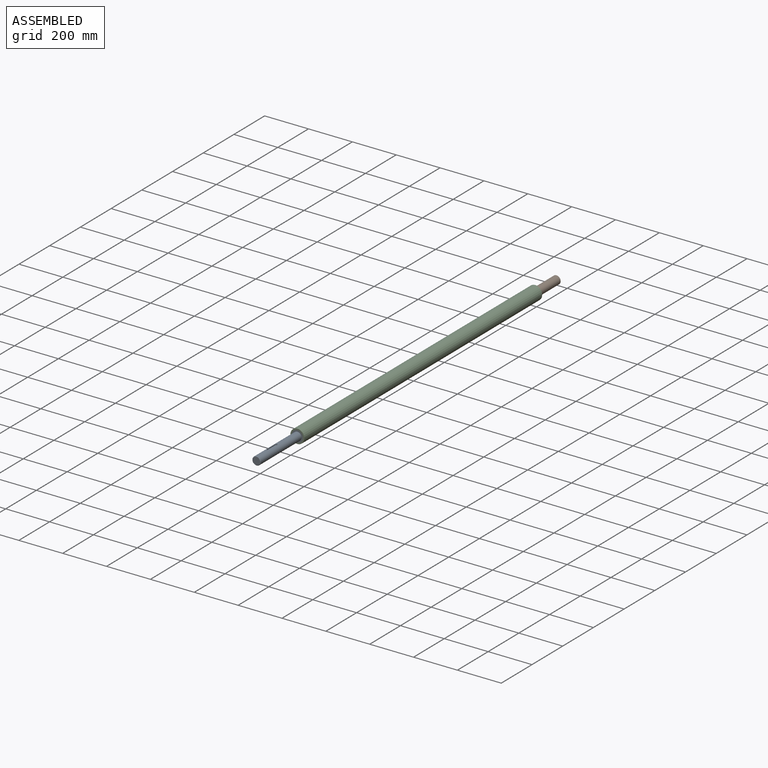
[diagram: assembled view]
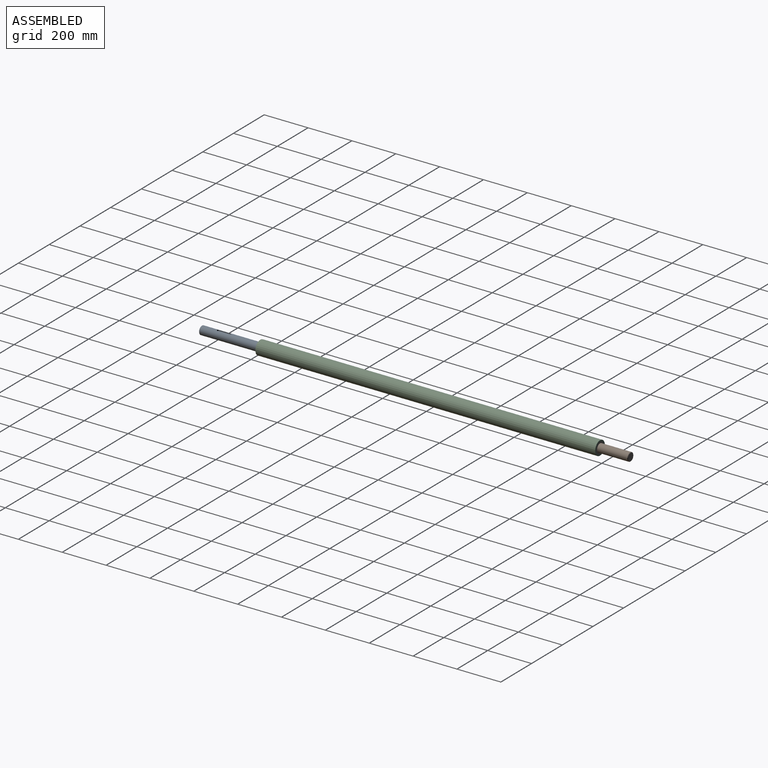
[diagram: assembled view, second angle]
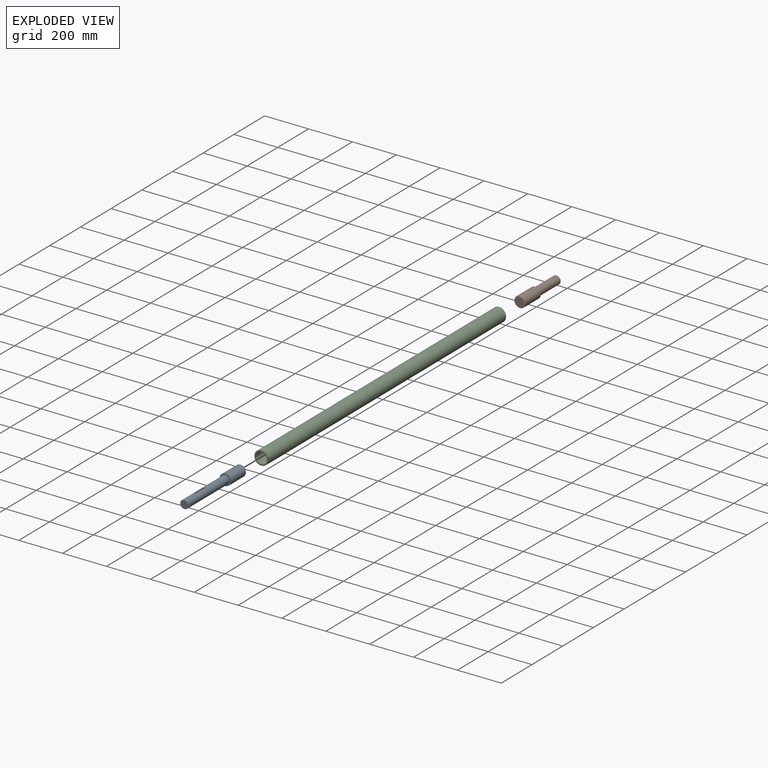
[diagram: exploded view]
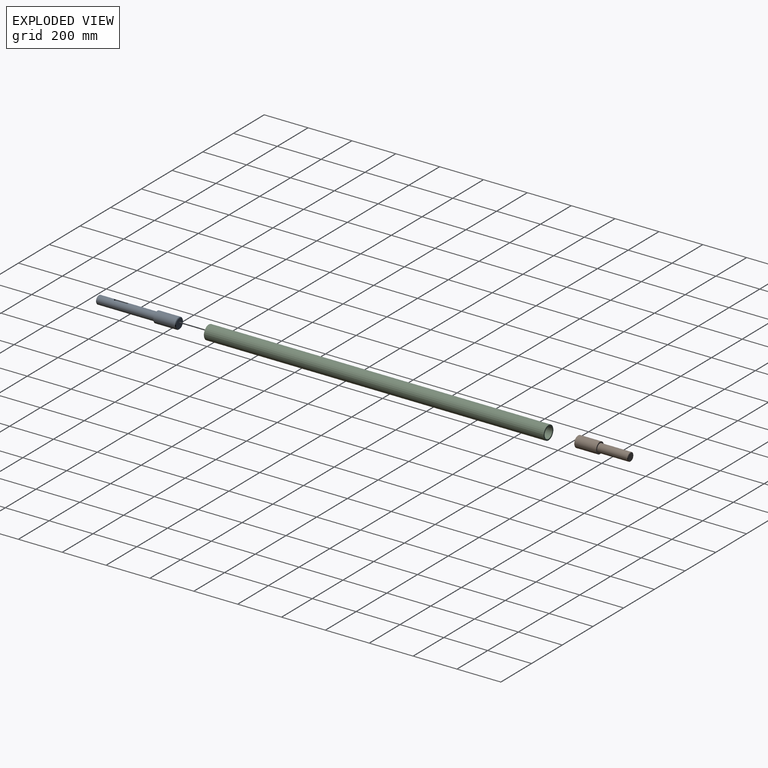
[diagram: exploded view, second angle]
ASSEMBLY  parts=3 mates=3
PART A: 12 faces, bbox 50.8x368.3x50.8 mm
  f0: cylinder r=19.05mm len=265.18mm, axis (0,1,0), area 31148.7mm2, adj f3,f5,f6,f7,f8,f10
  f1: cylinder r=25.4mm len=99.06mm, axis (0,-1,0), area 15809.3mm2, adj f3,f11
  f2: plane 45.72x45.72mm, normal (0,1,0), area 1641.7mm2, adj f11
  f3: plane 50.8x50.8mm, normal (0,-1,0), area 886.7mm2, adj f0,f1
  f4: plane 35.05x35.05mm, normal (0,-1,0), area 965mm2, adj f10
  f5: plane 53.98x4.16mm, normal (1,0,0), area 224.4mm2, adj f0,f6,f8,f9
  f6: cylinder r=4.76mm len=9.53mm, axis (0,0,1), area 66.7mm2, adj f0,f5,f7,f9
  f7: plane 53.98x4.16mm, normal (-1,0,0), area 224.4mm2, adj f0,f6,f8,f9
  f8: cylinder r=4.76mm len=9.53mm, axis (0,0,1), area 66.7mm2, adj f0,f5,f7,f9
  f9: plane 63.5x9.53mm, normal (0,0,1), area 585.4mm2, adj f5,f6,f7,f8
  f10: cone r=17.53mm half-angle=45deg, axis (0,1,0), area 247.7mm2, adj f0,f4
  f11: cone r=25.4mm half-angle=45deg, axis (0,-1,0), area 544.6mm2, adj f1,f2
PART B: 7 faces, bbox 50.8x241.3x50.8 mm
  f0: cylinder r=25.4mm len=99.06mm, axis (0,-1,0), area 15809.3mm2, adj f2,f6
  f1: plane 45.72x45.72mm, normal (0,1,0), area 1641.7mm2, adj f6
  f2: plane 50.8x50.8mm, normal (0,-1,0), area 886.7mm2, adj f0,f3
  f3: cylinder r=19.05mm len=138.18mm, axis (0,1,0), area 16538.9mm2, adj f2,f5
  f4: plane 35.05x35.05mm, normal (0,-1,0), area 965mm2, adj f5
  f5: cone r=17.53mm half-angle=45deg, axis (0,1,0), area 247.7mm2, adj f3,f4
  f6: cone r=25.4mm half-angle=45deg, axis (0,-1,0), area 544.6mm2, adj f0,f1
PART C: 4 faces, bbox 63.5x1549.4x63.5 mm
  f0: cylinder r=25.4mm len=1549.4mm, axis (0,-1,0), area 247273.2mm2, adj f2,f3
  f1: cylinder r=31.75mm len=1549.4mm, axis (0,-1,0), area 309091.6mm2, adj f2,f3
  f2: plane 63.5x63.5mm, normal (0,1,0), area 1140.1mm2, adj f0,f1
  f3: plane 63.5x63.5mm, normal (0,-1,0), area 1140.1mm2, adj f0,f1
PLACE A t=(111.94,42.63,0)mm
PLACE B rot(axis=(1,0,0),180deg) t=(192.5,1592.03,0)mm
PLACE C t=(0,42.63,0)mm
MATE planar A.f0 <-> C.f1  axis (0,-1,0) through (0,42.63,0)mm
MATE cylindrical B.f0 <-> C.f1  axis (0,1,0) through (0,1592.03,0)mm
MATE planar B.f0 <-> C.f0  axis (0,1,0) through (0,1592.03,0)mm
